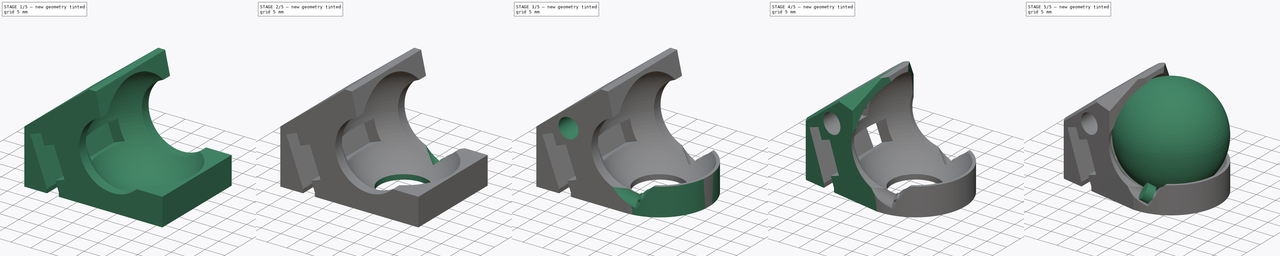
[diagram: build sequence overview — one tinted view per stage of 5, left to right]
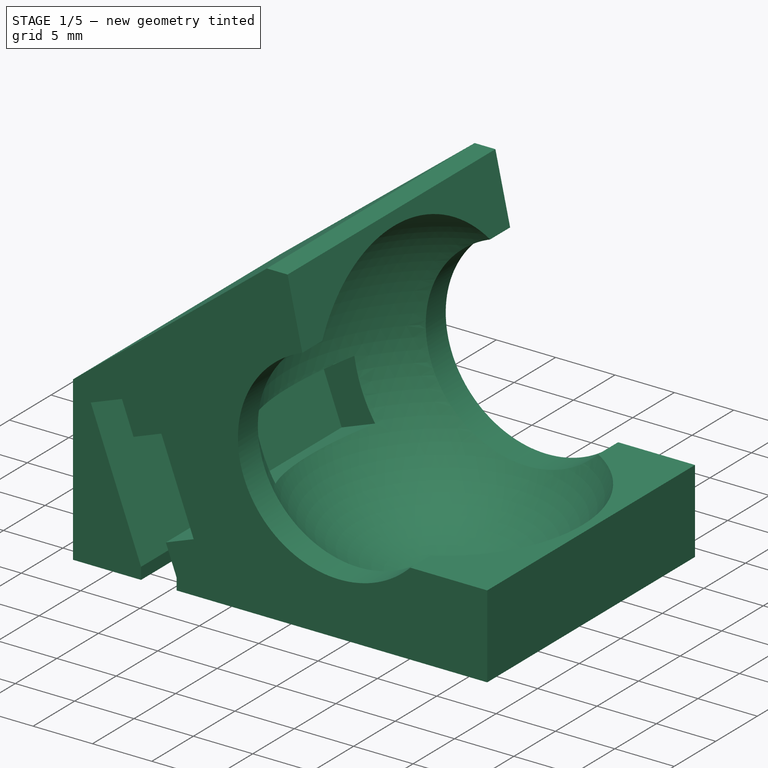
[diagram: stage 1 of 5 — iso view after this stage's code; geometry added in this stage tinted green]
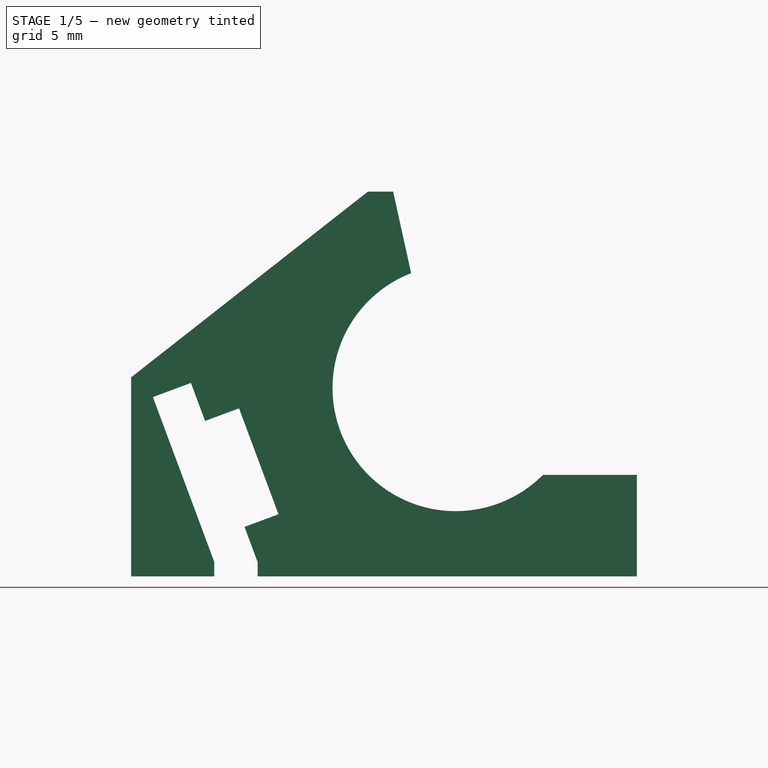
[diagram: stage 1 of 5 — front view after this stage's code; geometry added in this stage tinted green]
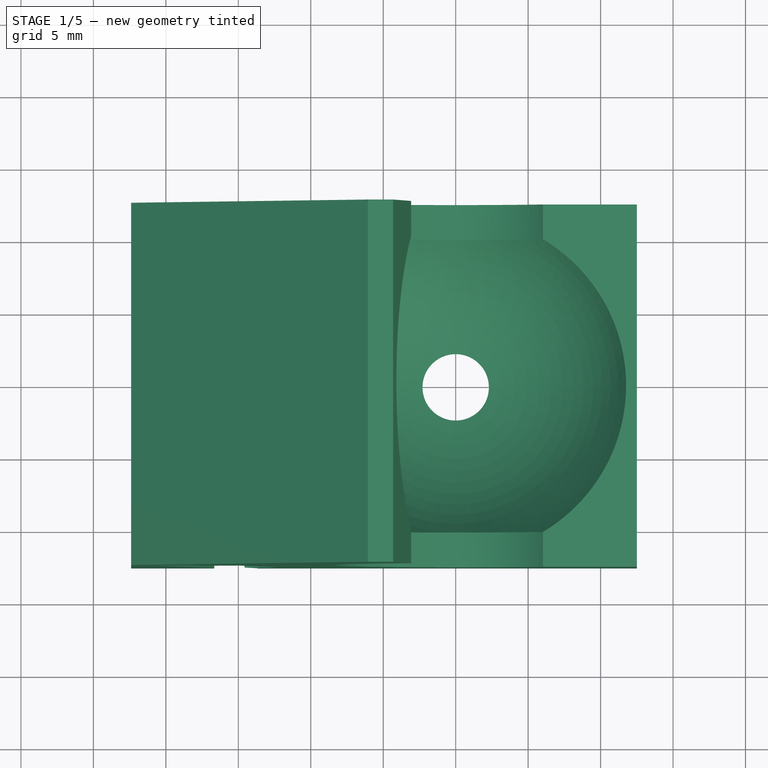
[diagram: stage 1 of 5 — top view after this stage's code; geometry added in this stage tinted green]
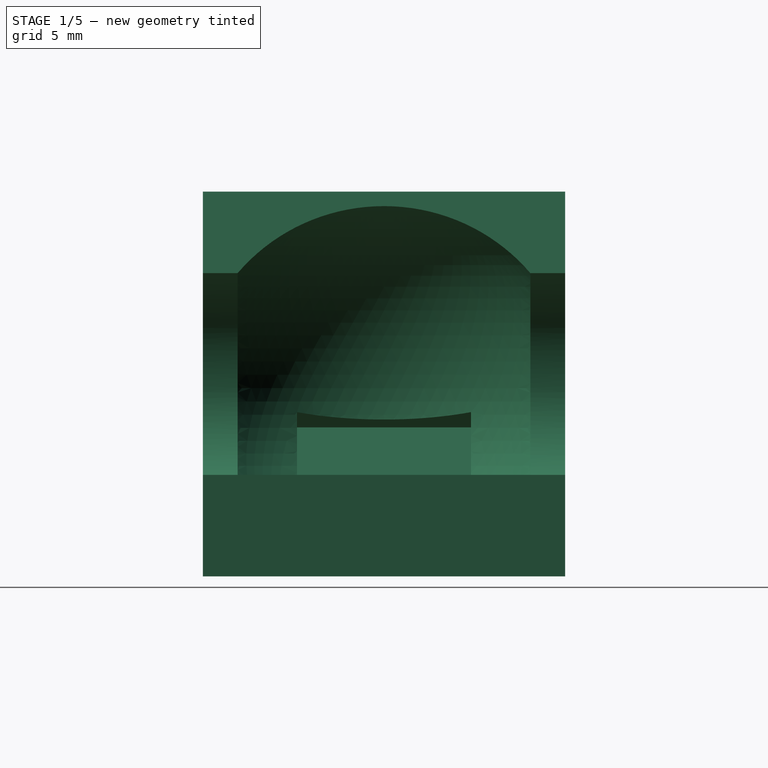
[diagram: stage 1 of 5 — right view after this stage's code; geometry added in this stage tinted green]
FCSTD DOCUMENT  (FreeCAD 0.21R33771 (Git))
Label: trackball-case
License: All rights reserved
LicenseURL: http://en.wikipedia.org/wiki/All_rights_reserved
objects: Sketcher::SketchObject×16, PartDesign::Pocket×11, PartDesign::Pad×3, PartDesign::Line×2, PartDesign::PolarPattern×2, PartDesign::Body×2, Spreadsheet::Sheet×1, PartDesign::AdditiveSphere×1, PartDesign::Point×1, PartDesign::Plane×1, PartDesign::SubtractiveSphere×1, PartDesign::Mirrored×1, PartDesign::Chamfer×1
note: 59 computed .brp shape members not serialized (recipe doc carries the construction recipe); baked Part::Feature solids carry a one-line shape summary decoded from their .brp

FEATURE [Sketcher::SketchObject] Sketch
  FullyConstrained = false
  MapMode = 5
  Placement = pos=(0,0,0) rot=(1,0,0;1.5708rad)
  Support = -> [XZ_Plane]
  expr: Constraints[18] = Spreadsheet.radius + 2
  expr: Constraints[1] = Spreadsheet.radius * 2
  expr: Constraints[2] = Spreadsheet.ball_z
  expr: Constraints[37] = 2 * (Spreadsheet.radius + Spreadsheet.clearance)
  expr: Constraints[42] = Spreadsheet.radius * 2 - 0.6
  expr: Constraints[89] = Spreadsheet.radius + Spreadsheet.clearance + 1.2
  sketch-geometry (32):
    g0: Circle CenterX=0 CenterY=13 CenterZ=0 NormalX=0 NormalY=0 NormalZ=1 AngleXU=0 Radius=12.5
    g1: LineSegment StartX=0 StartY=13 StartZ=0 EndX=-23.8845 EndY=4.10753 EndZ=0
    g2: LineSegment StartX=-15.9265 StartY=14.2197 StartZ=0 EndX=-20.8934 EndY=12.3704 EndZ=0
    g3: LineSegment StartX=-20.8934 StartY=12.3704 StartZ=0 EndX=-16.2877 EndY=0 EndZ=0
    g4: LineSegment StartX=-16.2877 StartY=0 StartZ=0 EndX=-11.3208 EndY=1.84924 EndZ=0
    g5: LineSegment StartX=-11.3208 StartY=1.84924 StartZ=0 EndX=-15.9265 EndY=14.2197 EndZ=0
    g6: LineSegment StartX=-11.3208 StartY=1.84924 StartZ=0 EndX=-13.5887 EndY=7.94075 EndZ=0
    g7: LineSegment StartX=12.5 StartY=13 StartZ=0 EndX=12.5 EndY=0 EndZ=0
    g8: LineSegment StartX=12.5 StartY=7 StartZ=0 EndX=0 EndY=7 EndZ=0
    g9: LineSegment StartX=0 StartY=7 StartZ=0 EndX=-4.09504 EndY=25.5487 EndZ=0
    g10: LineSegment StartX=-4.09504 StartY=25.5487 StartZ=0 EndX=-22.3934 EndY=25.5487 EndZ=0
    g11: LineSegment StartX=-22.3934 StartY=25.5487 StartZ=0 EndX=-22.3934 EndY=0 EndZ=0
    g12: LineSegment StartX=-22.3934 StartY=0 StartZ=0 EndX=12.5 EndY=0 EndZ=0
    g13: LineSegment StartX=12.5 StartY=0 StartZ=0 EndX=12.5 EndY=7 EndZ=0
    g14: Circle CenterX=0 CenterY=13 CenterZ=0 NormalX=0 NormalY=0 NormalZ=1 AngleXU=0 Radius=13.2
    g15: LineSegment StartX=0 StartY=7 StartZ=0 EndX=11.7576 EndY=7 EndZ=0
    g16: LineSegment StartX=-4.31581 StartY=26.5487 StartZ=0 EndX=-4.09504 EndY=25.5487 EndZ=0
    g17: LineSegment StartX=-18.2694 StartY=13.3474 StartZ=0 EndX=-20.8934 EndY=12.3704 EndZ=0
    g18: LineSegment StartX=-20.8934 StartY=12.3704 StartZ=0 EndX=-16.66 EndY=1 EndZ=0
    g19: LineSegment StartX=-16.66 StartY=1 StartZ=0 EndX=-16.66 EndY=0 EndZ=0
    g20: LineSegment StartX=-16.66 StartY=0 StartZ=0 EndX=-22.3934 EndY=0 EndZ=0
    g21: LineSegment StartX=-18.2694 StartY=13.3474 StartZ=0 EndX=-17.2924 EndY=10.7234 EndZ=0
    g22: LineSegment StartX=-17.2924 StartY=10.7234 StartZ=0 EndX=-14.9495 EndY=11.5957 EndZ=0
    g23: LineSegment StartX=-14.9495 StartY=11.5957 StartZ=0 EndX=-12.228 EndY=4.28585 EndZ=0
    g24: LineSegment StartX=-12.228 StartY=4.28585 StartZ=0 EndX=-14.5709 EndY=3.41356 EndZ=0
    g25: LineSegment StartX=-14.5709 StartY=3.41356 StartZ=0 EndX=-13.6637 EndY=0.976959 EndZ=0
    g26: LineSegment StartX=-13.6637 StartY=0.976959 StartZ=0 EndX=-13.6637 EndY=0 EndZ=0
    g27: LineSegment StartX=-13.6637 StartY=0 StartZ=0 EndX=12.5 EndY=0 EndZ=0
    g28: LineSegment StartX=-18.2694 StartY=13.3474 StartZ=0 EndX=-13.6637 EndY=0.976959 EndZ=0
    g29: LineSegment StartX=-22.3934 StartY=0 StartZ=0 EndX=-22.3934 EndY=13.7357 EndZ=0
    g30: LineSegment StartX=-22.3934 StartY=13.7357 StartZ=0 EndX=-6.05923 EndY=26.5487 EndZ=0
    g31: LineSegment StartX=-6.05923 StartY=26.5487 StartZ=0 EndX=-4.31581 EndY=26.5487 EndZ=0
  constraints (93):
    c: PointOnObject(g0,g-2)
    c: Diameter(g0) = 25
    c: Distance(g0,g-1) = 13
    c: Coincident(g1,g0)
    c: Coincident(g3,g2)
    c: Coincident(g4,g3)
    c: Coincident(g5,g4)
    c: Coincident(g5,g2)
    c: Perpendicular(g1,g5)
    c: Perpendicular(g1,g3)
    c: Parallel(g2,g1)
    c: Parallel(g4,g1)
    c: Distance(g3,g1) = 6.5
    c: Distance(g2,g1) = 6.7
    c: Distance(g4) = 5.3
    c: Coincident(g6,g4)
    c: PointOnObject(g6,g1)
    c: PointOnObject(g6,g5)
    c: Distance(g6,g0) = 14.5
    c: PointOnObject(g7,g0)
    c: PointOnObject(g7,g-1)
    c: Vertical(g7)
    c: Tangent(g7,g0)
    c: PointOnObject(g8,g7)
    c: PointOnObject(g8,g-2)
    c: Horizontal(g8)
    c: Coincident(g9,g8)
    c: Coincident(g10,g9)
    c: Horizontal(g10)
    c: Coincident(g11,g10)
    c: PointOnObject(g11,g-1)
    c: Vertical(g11)
    c: Coincident(g12,g11)
    c: Coincident(g12,g7)
    c: Coincident(g13,g12)
    c: Coincident(g13,g8)
    c: Coincident(g14,g0)
    c: Diameter(g14) = 26.4
    c: PointOnObject(g9,g14)
    c: Coincident(g15,g8)
    c: PointOnObject(g15,g8)
    c: PointOnObject(g15,g14)
    c: Distance(g9,g15) = 24.4
    c: Distance(g13) = 7
    c: Coincident(g16,g9)
    c: Parallel(g16,g9)
    c: Distance(g2,g11) = 1.5
    c: PointOnObject(g3,g12)
    c: PointOnObject(g17,g2)
    c: Coincident(g17,g2)
    c: Coincident(g18,g17)
    c: PointOnObject(g18,g3)
    c: Coincident(g19,g18)
    c: PointOnObject(g19,g12)
    c: Vertical(g19)
    c: Coincident(g20,g19)
    c: Coincident(g20,g11)
    c: Coincident(g21,g17)
    c: Coincident(g22,g21)
    c: PointOnObject(g22,g5)
    c: Coincident(g23,g22)
    c: PointOnObject(g23,g5)
    c: Coincident(g24,g23)
    c: Coincident(g25,g24)
    c: PointOnObject(g25,g4)
    c: Coincident(g26,g25)
    c: PointOnObject(g26,g12)
    c: Vertical(g26)
    c: Coincident(g27,g26)
    c: Coincident(g27,g13)
    c: Coincident(g28,g17)
    c: Coincident(g28,g25)
    c: PointOnObject(g21,g28)
    c: PointOnObject(g24,g28)
    c: Perpendicular(g22,g21)
    c: Perpendicular(g25,g24)
    c: Distance(g22,g1) = 3.9
    c: Distance(g23,g1) = 3.9
    c: Distance(g22) = 2.5
    c: Perpendicular(g1,g28)
    c: Distance(g19) = 1
    c: Coincident(g29,g20)
    c: PointOnObject(g29,g11)
    c: Coincident(g30,g29)
    c: Coincident(g31,g30)
    c: Coincident(g31,g16)
    c: Horizontal(g31)
    c: Distance(g16,g10) = 1
    c: Distance(g17,g30) = 2
    c: Distance(g0,g30) = 14.4
    c: Distance(g15,g8) = 0.742449
    c: Distance(g16,g27) = 26.5487
    c: Distance(g20,g-2) = 22.3934
FEATURE [Spreadsheet::Sheet] Spreadsheet
  cells = A1='radius; B1(radius)=12.5; A2='ball_z; B2(ball_z)=13; A3='ball_clearance; B3(clearance)=0.7; A4='bearing_radius; B4(bearing_radius)=2; A5='bearing_t; B5(bearing_t)=2; A6='bearing_a1; B6(bearing_a1)=100; A7='bearing_a2; B7(bearing_a2)=30
FEATURE [PartDesign::Pad] Pad
  Direction = (0,-1,2e-16)
  Length = 25
  Length2 = 10
  Midplane = true
  Placement = pos=(0,0,0) rot=(1,0,0;1.5708rad)
  Profile = -> Sketch
  ReferenceAxis = -> Sketch [N_Axis]
  Type = 0
  expr: Length = Spreadsheet.radius * 2
FEATURE [Sketcher::SketchObject] Sketch001
  FullyConstrained = true
  MapMode = 5
  Placement = pos=(0,0,0) rot=(1,0,0;1.5708rad)
  Support = -> [XZ_Plane]
  expr: Constraints[1] = Spreadsheet.ball_z
  sketch-geometry (1):
    g0: Circle CenterX=0 CenterY=13 CenterZ=0 NormalX=0 NormalY=0 NormalZ=1 AngleXU=0 Radius=8.5
  constraints (3):
    c: PointOnObject(g0,g-2)
    c: Distance(g0,g-1) = 13
    c: Diameter(g0) = 17
FEATURE [Sketcher::SketchObject] Sketch002
  FullyConstrained = true
  MapMode = 5
  Support = -> [XY_Plane]
  sketch-geometry (1):
    g0: Circle CenterX=0 CenterY=0 CenterZ=0 NormalX=0 NormalY=0 NormalZ=1 AngleXU=0 Radius=6
  constraints (2):
    c: Coincident(g0,g-1)
    c: Diameter(g0) = 12
FEATURE [Sketcher::SketchObject] Sketch006
  FullyConstrained = false
  MapMode = 5
  Placement = pos=(0,0,0) rot=(1,0,0;1.5708rad)
  Support = -> [XZ_Plane]
  expr: Constraints[1] = Spreadsheet.ball_z
  expr: Constraints[2] = Spreadsheet.bearing_a1
  expr: Constraints[3] = Spreadsheet.bearing_a2
  expr: Constraints[5] = (Spreadsheet.bearing_a1 + Spreadsheet.bearing_a2) / 2
  sketch-geometry (3):
    g0: LineSegment StartX=0 StartY=13 StartZ=0 EndX=-24.3601 EndY=17.2954 EndZ=0
    g1: LineSegment StartX=-0.855559 StartY=12.664 StartZ=0 EndX=7.91392 EndY=-2.52517 EndZ=0
    g2: LineSegment StartX=4.29224 StartY=19.13 StartZ=0 EndX=-7.83363 EndY=1.81242 EndZ=0
  constraints (6):
    c: PointOnObject(g0,g-2)
    c: Distance(g0,g-1) = 13
    c: Angle(g0,g-2) = 1.74533
    c: Angle(g-2,g1) = 0.523599
    c: PointOnObject(g0,g2)
    c: Angle(g0,g2) = 1.13446
FEATURE [PartDesign::Line] DatumLine
  AttacherType = Attacher::AttachEngineLine
  Length = 20
  MapMode = 29
  Placement = pos=(-6.108,9e-16,4.27687) rot=(0.690162,-0.690162,-0.217607;2.71306rad)
  ResizeMode = 0
  Support = -> [Sketch006]
FEATURE [PartDesign::Point] DatumPoint
  AttacherType = Attacher::AttachEnginePoint
  AttachmentOffset = pos=(0,0,13) rot=(0,0,1;0rad)
  MapMode = 41
  Placement = pos=(0,0,13) rot=(0,0,1;0rad)
  Support = -> [X_Axis,Y_Axis]
  expr: .AttachmentOffset.Base.z = Spreadsheet.ball_z
FEATURE [PartDesign::Plane] DatumPlane
  AttachmentOffset = pos=(0,0,0) rot=(0.654654,0.377964,-0.654654;2.41886rad)
  Length = 85.7869
  MapMode = 7
  Placement = pos=(2.7e-15,2.1e-15,13) rot=(0.133526,0.957276,-0.256501;2.21698rad)
  ResizeMode = 0
  Support = -> [DatumLine,DatumPoint]
  Width = 93.4714
FEATURE [Sketcher::SketchObject] Sketch003
  FullyConstrained = true
  MapMode = 5
  Placement = pos=(2.7e-15,1.8e-15,13) rot=(0.133526,0.957276,-0.256501;2.21698rad)
  Support = -> [DatumPlane]
  expr: Constraints[0] = Spreadsheet.bearing_radius * 2
  expr: Constraints[2] = Spreadsheet.radius + Spreadsheet.bearing_radius
  expr: Constraints[4] = (Spreadsheet.bearing_radius + 0.5) * 2
  expr: Constraints[6] = (Spreadsheet.bearing_a1 + Spreadsheet.bearing_a2) / 2
  sketch-geometry (3):
    g0: Circle CenterX=6.12796 CenterY=13.1415 CenterZ=0 NormalX=0 NormalY=0 NormalZ=1 AngleXU=0 Radius=2
    g1: LineSegment StartX=0 StartY=0 StartZ=0 EndX=6.12796 EndY=13.1415 EndZ=0
    g2: Circle CenterX=6.12796 CenterY=13.1415 CenterZ=0 NormalX=0 NormalY=0 NormalZ=1 AngleXU=0 Radius=2.5
  constraints (7):
    c: Diameter(g0) = 4
    c: Coincident(g1,g0)
    c: Distance(g1) = 14.5
    c: Coincident(g2,g0)
    c: Diameter(g2) = 5
    c: Coincident(g1,g-1)
    c: Angle(g-1,g1) = 1.13446
FEATURE [Sketcher::SketchObject] Sketch004
  AttachmentOffset = pos=(0,0,1) rot=(0,0,1;0rad)
  FullyConstrained = true
  MapMode = 5
  Placement = pos=(0.709406,-0.5,12.5033) rot=(0.133526,0.957276,-0.256501;2.21698rad)
  Support = -> [DatumPlane]
  expr: .AttachmentOffset.Base.z = Spreadsheet.bearing_t / 2
  expr: Constraints[0] = Spreadsheet.bearing_radius * 2
  expr: Constraints[2] = Spreadsheet.radius + Spreadsheet.bearing_radius
  expr: Constraints[6] = (Spreadsheet.bearing_a1 + Spreadsheet.bearing_a2) / 2
  sketch-geometry (3):
    g0: Circle CenterX=6.12796 CenterY=13.1415 CenterZ=0 NormalX=0 NormalY=0 NormalZ=1 AngleXU=0 Radius=2
    g1: LineSegment StartX=0 StartY=0 StartZ=0 EndX=6.12796 EndY=13.1415 EndZ=0
    g2: Circle CenterX=6.12796 CenterY=13.1415 CenterZ=0 NormalX=0 NormalY=0 NormalZ=1 AngleXU=0 Radius=0.95
  constraints (7):
    c: Diameter(g0) = 4
    c: Coincident(g1,g0)
    c: Distance(g1) = 14.5
    c: Coincident(g2,g0)
    c: Diameter(g2) = 1.9
    c: Coincident(g1,g-1)
    c: Angle(g-1,g1) = 1.13446
FEATURE [Sketcher::SketchObject] Sketch005
  AttachmentOffset = pos=(0,0,1) rot=(0,0,1;0rad)
  FullyConstrained = true
  MapMode = 5
  Placement = pos=(0.709406,-0.5,12.5033) rot=(0.133526,0.957276,-0.256501;2.21698rad)
  Support = -> [DatumPlane]
  expr: .AttachmentOffset.Base.z = Spreadsheet.bearing_t / 2
  expr: Constraints[0] = Spreadsheet.bearing_radius * 2
  expr: Constraints[29] = (Spreadsheet.bearing_a1 + Spreadsheet.bearing_a2) / 2
  expr: Constraints[2] = Spreadsheet.radius + Spreadsheet.bearing_radius
  sketch-geometry (11):
    g0: Circle CenterX=6.12796 CenterY=13.1415 CenterZ=0 NormalX=0 NormalY=0 NormalZ=1 AngleXU=0 Radius=2
    g1: LineSegment StartX=0 StartY=0 StartZ=0 EndX=6.12796 EndY=13.1415 EndZ=0
    g2: LineSegment StartX=6.12796 StartY=13.1415 StartZ=0 EndX=6.12796 EndY=15.1415 EndZ=0
    g3: Circle CenterX=6.12796 CenterY=13.1415 CenterZ=0 NormalX=0 NormalY=0 NormalZ=1 AngleXU=0 Radius=0.65
    g4: LineSegment StartX=6.12796 StartY=13.7915 StartZ=0 EndX=5.56505 EndY=13.4665 EndZ=0
    g5: LineSegment StartX=5.56505 StartY=13.4665 StartZ=0 EndX=5.56505 EndY=12.8165 EndZ=0
    g6: LineSegment StartX=5.56505 StartY=12.8165 StartZ=0 EndX=6.12796 EndY=12.4915 EndZ=0
    g7: LineSegment StartX=6.12796 StartY=12.4915 StartZ=0 EndX=6.69088 EndY=12.8165 EndZ=0
    g8: LineSegment StartX=6.69088 StartY=12.8165 StartZ=0 EndX=6.69088 EndY=13.4665 EndZ=0
    g9: LineSegment StartX=6.69088 StartY=13.4665 StartZ=0 EndX=6.12796 EndY=13.7915 EndZ=0
    g10: Circle CenterX=6.12796 CenterY=13.1415 CenterZ=0 NormalX=0 NormalY=0 NormalZ=1 AngleXU=0 Radius=0.65
  constraints (26):
    c: Diameter(g0) = 4
    c: Coincident(g1,g0)
    c: Distance(g1) = 14.5
    c: Coincident(g2,g0)
    c: PointOnObject(g2,g0)
    c: Vertical(g2)
    c: Coincident(g3,g0)
    c: Diameter(g3) = 1.3
    c: Coincident(g4,g5)
    c: Coincident(g5,g6)
    c: Coincident(g6,g7)
    c: Coincident(g7,g8)
    c: Coincident(g8,g9)
    c: Coincident(g9,g4)
    c: Equal(g4, g5-g9) x5
    c: PointOnObject(g4,g10)
    c: PointOnObject(g5,g10)
    c: PointOnObject(g6,g10)
    c: PointOnObject(g7,g10)
    c: PointOnObject(g8,g10)
    c: PointOnObject(g9,g10)
    c: Coincident(g10,g0)
    c: PointOnObject(g9,g3)
    c: PointOnObject(g4,g2)
    c: Coincident(g1,g-1)
    c: Angle(g-1,g1) = 1.13446
FEATURE [Sketcher::SketchObject] Sketch007
  FullyConstrained = true
  MapMode = 5
  Support = -> [XY_Plane]
  expr: Constraints[6] = Spreadsheet.radius
  expr: Constraints[7] = Spreadsheet.radius * 2
  sketch-geometry (4):
    g0: ArcOfCircle CenterX=0 CenterY=0 CenterZ=0 NormalX=0 NormalY=0 NormalZ=1 AngleXU=0 Radius=12.5 StartAngle=4.71239 EndAngle=7.85398
    g1: ArcOfCircle CenterX=0 CenterY=0 CenterZ=0 NormalX=0 NormalY=0 NormalZ=1 AngleXU=0 Radius=25 StartAngle=4.71239 EndAngle=7.85398
    g2: LineSegment StartX=1.3621e-12 StartY=25 StartZ=0 EndX=0 EndY=12.5 EndZ=0
    g3: LineSegment StartX=0 StartY=-12.5 StartZ=0 EndX=-9.15e-13 EndY=-25 EndZ=0
  constraints (12):
    c: Coincident(g0,g-1)
    c: PointOnObject(g0,g-2)
    c: PointOnObject(g0,g-2)
    c: Coincident(g1,g0)
    c: PointOnObject(g1,g-2)
    c: PointOnObject(g1,g-2)
    c: Radius(g0) = 12.5
    c: Radius(g1) = 25
    c: Coincident(g2,g1)
    c: Coincident(g2,g0)
    c: Coincident(g3,g0)
    c: Coincident(g3,g1)
FEATURE [Sketcher::SketchObject] Sketch008
  FullyConstrained = true
  MapMode = 5
  Support = -> [XY_Plane]
  expr: Constraints[10] = Spreadsheet.radius * 2
  expr: Constraints[33] = Spreadsheet.radius * 2
  expr: Constraints[34] = Spreadsheet.radius * 2
  expr: Constraints[36] = Spreadsheet.radius * 2
  sketch-geometry (14):
    g0: LineSegment StartX=-23 StartY=-12.5 StartZ=0 EndX=-23 EndY=12.5 EndZ=0
    g1: LineSegment StartX=-23 StartY=12.5 StartZ=0 EndX=0 EndY=12.5 EndZ=0
    g2: LineSegment StartX=0 StartY=12.5 StartZ=0 EndX=0 EndY=-12.5 EndZ=0
    g3: LineSegment StartX=0 StartY=-12.5 StartZ=0 EndX=-23 EndY=-12.5 EndZ=0
    g4: GeomPoint X=-11.5 Y=0 Z=0
    g5: LineSegment StartX=-23 StartY=8 StartZ=0 EndX=-1 EndY=12.5 EndZ=0
    g6: LineSegment StartX=-1 StartY=12.5 StartZ=0 EndX=-1 EndY=-12.5 EndZ=0
    g7: LineSegment StartX=-1 StartY=-12.5 StartZ=0 EndX=-23 EndY=-8 EndZ=0
    g8: LineSegment StartX=-1 StartY=-12.5 StartZ=0 EndX=-1 EndY=-25 EndZ=0
    g9: LineSegment StartX=-1 StartY=-25 StartZ=0 EndX=-26 EndY=-25 EndZ=0
    g10: LineSegment StartX=-26 StartY=-25 StartZ=0 EndX=-26 EndY=25 EndZ=0
    g11: LineSegment StartX=-26 StartY=25 StartZ=0 EndX=-1 EndY=25 EndZ=0
    g12: LineSegment StartX=-1 StartY=25 StartZ=0 EndX=-1 EndY=12.5 EndZ=0
    g13: LineSegment StartX=-23 StartY=8 StartZ=0 EndX=-23 EndY=-8 EndZ=0
  constraints (39):
    c: Coincident(g0,g1)
    c: Coincident(g1,g2)
    c: Coincident(g2,g3)
    c: Coincident(g3,g0)
    c: Horizontal(g1)
    c: Horizontal(g3)
    c: Vertical(g0)
    c: Vertical(g2)
    c: Symmetric(g1,g0,g4)
    c: PointOnObject(g4,g-1)
    c: Distance(g0) = 25
    c: PointOnObject(g1,g-2)
    c: Distance(g-1,g0) = 23
    c: PointOnObject(g5,g0)
    c: PointOnObject(g5,g1)
    c: Coincident(g6,g5)
    c: PointOnObject(g6,g3)
    c: Vertical(g6)
    c: Coincident(g7,g6)
    c: PointOnObject(g7,g0)
    c: Distance(g5,g-1) = 8
    c: Distance(g7,g-1) = 8
    c: Coincident(g8,g7)
    c: Vertical(g8)
    c: Coincident(g9,g8)
    c: Horizontal(g9)
    c: Coincident(g10,g9)
    c: Vertical(g10)
    c: Coincident(g11,g10)
    c: Horizontal(g11)
    c: Coincident(g12,g11)
    c: Coincident(g12,g5)
    c: Vertical(g12)
    c: Distance(g10,g-1) = 25
    c: Distance(g9,g-1) = 25
    c: Distance(g7,g-2) = 1
    c: Distance(g9) = 25
    c: Coincident(g13,g5)
    c: Coincident(g13,g7)
FEATURE [Sketcher::SketchObject] Sketch009
  FullyConstrained = false
  MapMode = 5
  Placement = pos=(0,0,0) rot=(1,0,0;1.5708rad)
  Support = -> [XZ_Plane]
  expr: Constraints[18] = Spreadsheet.radius + 2
  expr: Constraints[1] = Spreadsheet.radius * 2
  expr: Constraints[24] = 2 * (Spreadsheet.radius + Spreadsheet.clearance)
  expr: Constraints[2] = Spreadsheet.ball_z
  expr: Constraints[37] = Spreadsheet.radius + 3
  sketch-geometry (14):
    g0: Circle CenterX=0 CenterY=13 CenterZ=0 NormalX=0 NormalY=0 NormalZ=1 AngleXU=0 Radius=12.5
    g1: LineSegment StartX=0 StartY=13 StartZ=0 EndX=-23.8969 EndY=4.10289 EndZ=0
    g2: LineSegment StartX=-15.9265 StartY=14.2197 StartZ=0 EndX=-20.8934 EndY=12.3704 EndZ=0
    g3: LineSegment StartX=-20.8934 StartY=12.3704 StartZ=0 EndX=-16.2877 EndY=0 EndZ=0
    g4: LineSegment StartX=-16.2877 StartY=0 StartZ=0 EndX=-11.3208 EndY=1.84924 EndZ=0
    g5: LineSegment StartX=-11.3208 StartY=1.84924 StartZ=0 EndX=-15.9265 EndY=14.2197 EndZ=0
    g6: LineSegment StartX=-11.3208 StartY=1.84924 StartZ=0 EndX=-13.5887 EndY=7.94075 EndZ=0
    g7: LineSegment StartX=-4.89099 StartY=25.2604 StartZ=0 EndX=-22.0934 EndY=25.2604 EndZ=0
    g8: LineSegment StartX=-22.0934 StartY=25.2604 StartZ=0 EndX=-22.0934 EndY=0 EndZ=0
    g9: Circle CenterX=0 CenterY=13 CenterZ=0 NormalX=0 NormalY=0 NormalZ=1 AngleXU=0 Radius=13.2
    g10: LineSegment StartX=-15.3982 StartY=9.93472 StartZ=0 EndX=-13.6536 EndY=5.24895 EndZ=0
    g11: LineSegment StartX=-13.6536 StartY=5.24895 StartZ=0 EndX=0.872285 EndY=10.6571 EndZ=0
    g12: LineSegment StartX=-15.3982 StartY=9.93472 StartZ=0 EndX=-0.872285 EndY=15.3429 EndZ=0
    g13: LineSegment StartX=-0.872285 StartY=15.3429 StartZ=0 EndX=0.872285 EndY=10.6571 EndZ=0
  constraints (40):
    c: PointOnObject(g0,g-2)
    c: Diameter(g0) = 25
    c: Distance(g0,g-1) = 13
    c: Coincident(g1,g0)
    c: Coincident(g3,g2)
    c: Coincident(g4,g3)
    c: Coincident(g5,g4)
    c: Coincident(g5,g2)
    c: Perpendicular(g1,g5)
    c: Perpendicular(g1,g3)
    c: Parallel(g2,g1)
    c: Parallel(g4,g1)
    c: Distance(g3,g1) = 6.5
    c: Distance(g2,g1) = 6.7
    c: Distance(g4) = 5.3
    c: Coincident(g6,g4)
    c: PointOnObject(g6,g1)
    c: PointOnObject(g6,g5)
    c: Distance(g6,g0) = 14.5
    c: Horizontal(g7)
    c: Coincident(g8,g7)
    c: PointOnObject(g8,g-1)
    c: Vertical(g8)
    c: Coincident(g9,g0)
    c: Diameter(g9) = 26.4
    c: PointOnObject(g7,g9)
    c: Distance(g2,g8) = 1.2
    c: PointOnObject(g3,g-1)
    c: Coincident(g11,g10)
    c: Coincident(g12,g10)
    c: Coincident(g13,g12)
    c: Coincident(g13,g11)
    c: Perpendicular(g1,g10)
    c: Perpendicular(g1,g13)
    c: Perpendicular(g13,g11)
    c: Perpendicular(g13,g12)
    c: PointOnObject(g0,g13)
    c: Distance(g0,g10) = 15.5
    c: Distance(g10,g1) = 2.5
    c: Distance(g10,g1) = 2.5
FEATURE [PartDesign::Pocket] Pocket006  label="センサービューポート"
  BaseFeature = -> Pad
  Direction = (0,1,-2e-16)
  Length = 12
  Length2 = 5
  Midplane = true
  Placement = pos=(0,0,0) rot=(1,0,0;1.5708rad)
  Profile = -> Sketch009
  ReferenceAxis = -> Sketch009 [N_Axis]
  Type = 0
FEATURE [PartDesign::SubtractiveSphere] Sphere
  Angle1 = -90
  Angle2 = 90
  Angle3 = 360
  AttacherType = Attacher::AttachEngine3D
  AttachmentOffset = pos=(0,0,13) rot=(0,0,1;0rad)
  BaseFeature = -> Pocket006
  MapMode = 5
  Placement = pos=(0,0,13) rot=(0,0,1;0rad)
  Radius = 13.2
  Support = -> [XY_Plane]
  expr: .AttachmentOffset.Base.z = Spreadsheet.ball_z
  expr: Radius = Spreadsheet.radius + Spreadsheet.clearance
FEATURE [PartDesign::Pocket] Pocket  label="側面穴"
  BaseFeature = -> Sphere
  Direction = (0,1,-2e-16)
  Length = 100
  Length2 = 5
  Midplane = true
  Placement = pos=(0,0,13) rot=(0,0,1;0rad)
  Profile = -> Sketch001
  ReferenceAxis = -> Sketch001 [N_Axis]
  Type = 0
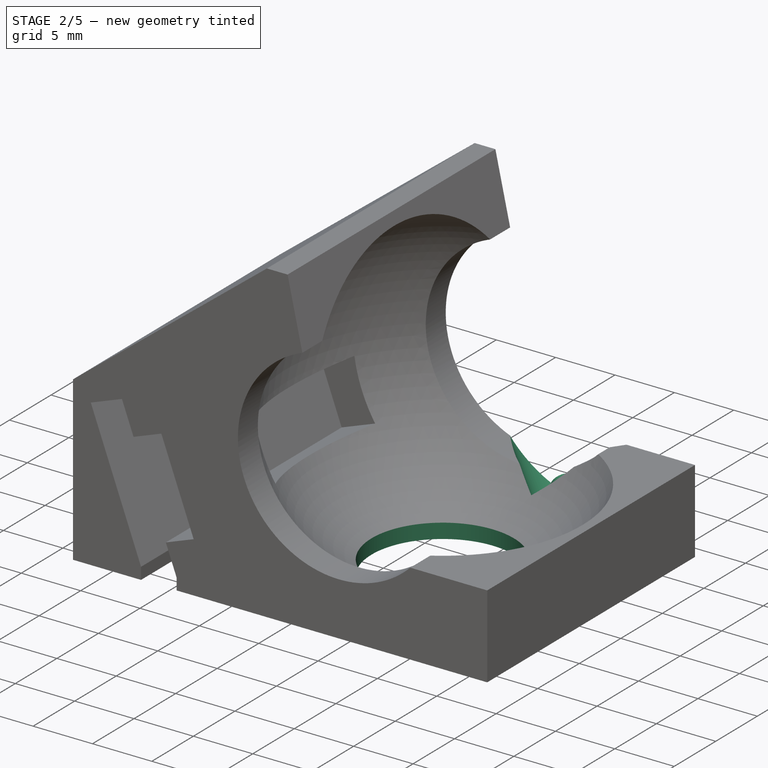
[diagram: stage 2 of 5 — iso view after this stage's code; geometry added in this stage tinted green]
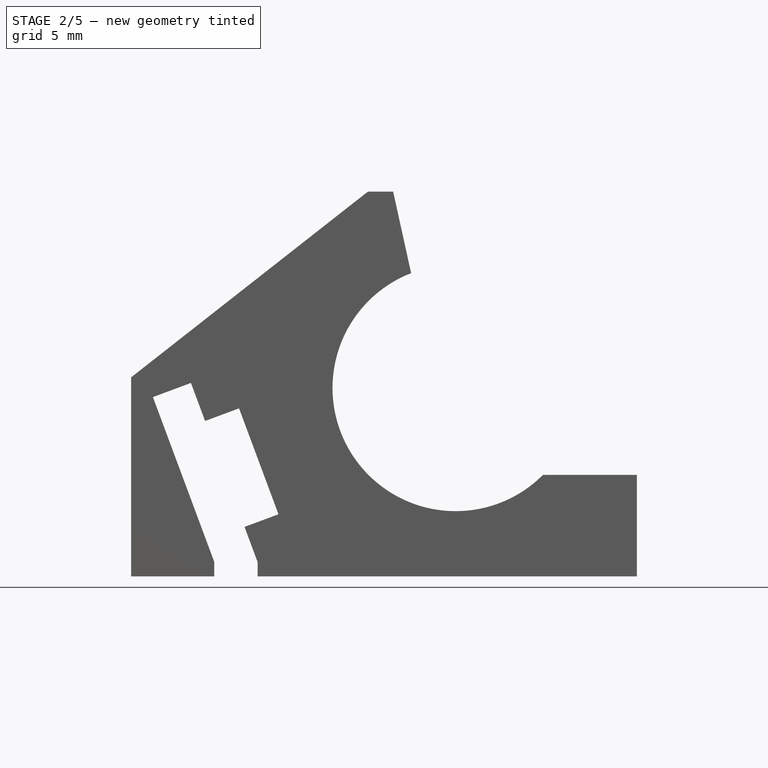
[diagram: stage 2 of 5 — front view after this stage's code; geometry added in this stage tinted green]
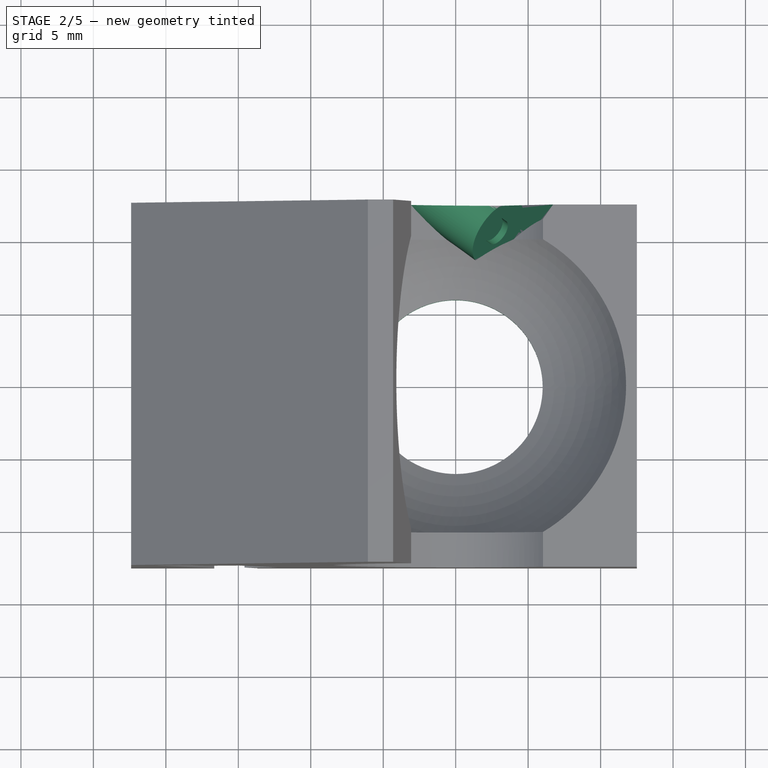
[diagram: stage 2 of 5 — top view after this stage's code; geometry added in this stage tinted green]
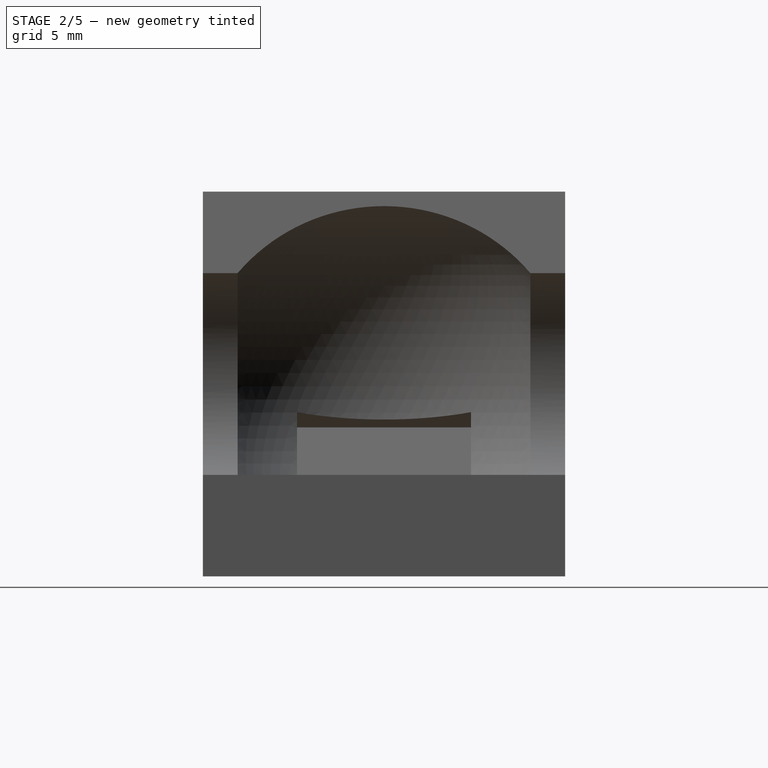
[diagram: stage 2 of 5 — right view after this stage's code; geometry added in this stage tinted green]
FEATURE [PartDesign::Pocket] Pocket001  label="底面穴"
  BaseFeature = -> Pocket
  Direction = (0,0,-1)
  Length = 12.5
  Length2 = 5
  Placement = pos=(0,0,13) rot=(0,0,1;0rad)
  Profile = -> Sketch002
  ReferenceAxis = -> Sketch002 [N_Axis]
  Reversed = true
  Type = 0
  expr: Length = Spreadsheet.radius
FEATURE [Sketcher::SketchObject] Sketch010
  FullyConstrained = true
  MapMode = 5
  Placement = pos=(2.7e-15,1.8e-15,13) rot=(0.133526,0.957276,-0.256501;2.21698rad)
  Support = -> [DatumPlane]
  expr: Constraints[0] = Spreadsheet.bearing_radius * 2
  expr: Constraints[2] = Spreadsheet.radius + Spreadsheet.bearing_radius
  expr: Constraints[4] = (Spreadsheet.bearing_radius + 0.5) * 2
  expr: Constraints[6] = (Spreadsheet.bearing_a1 + Spreadsheet.bearing_a2) / 2
  sketch-geometry (7):
    g0: Circle CenterX=6.12796 CenterY=13.1415 CenterZ=0 NormalX=0 NormalY=0 NormalZ=1 AngleXU=0 Radius=2
    g1: LineSegment StartX=0 StartY=0 StartZ=0 EndX=6.12796 EndY=13.1415 EndZ=0
    g2: Circle CenterX=6.12796 CenterY=13.1415 CenterZ=0 NormalX=0 NormalY=0 NormalZ=1 AngleXU=0 Radius=2.5
    g3: LineSegment StartX=7.18451 StartY=15.4072 StartZ=0 EndX=5.07142 EndY=10.8757 EndZ=0
    g4: LineSegment StartX=5.07142 StartY=10.8757 StartZ=0 EndX=-3.99166 EndY=15.1019 EndZ=0
    g5: LineSegment StartX=7.18451 StartY=15.4072 StartZ=0 EndX=-1.87858 EndY=19.6334 EndZ=0
    g6: LineSegment StartX=-1.87858 StartY=19.6334 StartZ=0 EndX=-3.99166 EndY=15.1019 EndZ=0
  constraints (19):
    c: Diameter(g0) = 4
    c: Coincident(g1,g0)
    c: Distance(g1) = 14.5
    c: Coincident(g2,g0)
    c: Diameter(g2) = 5
    c: Coincident(g1,g-1)
    c: Angle(g-1,g1) = 1.13446
    c: PointOnObject(g3,g2)
    c: PointOnObject(g3,g2)
    c: PointOnObject(g0,g3)
    c: PointOnObject(g3,g1)
    c: Coincident(g4,g3)
    c: Tangent(g4,g2)
    c: Coincident(g5,g3)
    c: Tangent(g5,g2)
    c: Coincident(g6,g5)
    c: Coincident(g6,g4)
    c: Parallel(g6,g3)
    c: Distance(g5) = 10
FEATURE [PartDesign::Pocket] Pocket007  label="ベアリング切り欠き1"
  BaseFeature = -> Pocket001
  Direction = (-0.709406,0.5,0.496732)
  Length = 5
  Length2 = 1.5
  Placement = pos=(0,0,13) rot=(0,0,1;0rad)
  Profile = -> Sketch010
  ReferenceAxis = -> Sketch010 [N_Axis]
  Type = 4
  expr: Length2 = Spreadsheet.bearing_t / 2 + 0.5
FEATURE [PartDesign::Pocket] Pocket002  label="ベアリング切り欠き2"
  BaseFeature = -> Pocket007
  Direction = (-0.709406,0.5,0.496732)
  Length = 1.5
  Length2 = 12.5
  Placement = pos=(0,0,13) rot=(0,0,1;0rad)
  Profile = -> Sketch003
  ReferenceAxis = -> Sketch003 [N_Axis]
  Reversed = true
  Type = 4
  expr: Length = Spreadsheet.bearing_t / 2 + 0.5
  expr: Length2 = Spreadsheet.radius
FEATURE [PartDesign::Pad] Pad001  label="ベアリングネジ固定台座"
  BaseFeature = -> Pocket002
  Direction = (0.709406,-0.5,-0.496732)
  Length = 2
  Length2 = 10
  Placement = pos=(0,0,13) rot=(0,0,1;0rad)
  Profile = -> Sketch004
  ReferenceAxis = -> Sketch004 [N_Axis]
  Type = 0
  expr: Length = Spreadsheet.bearing_t
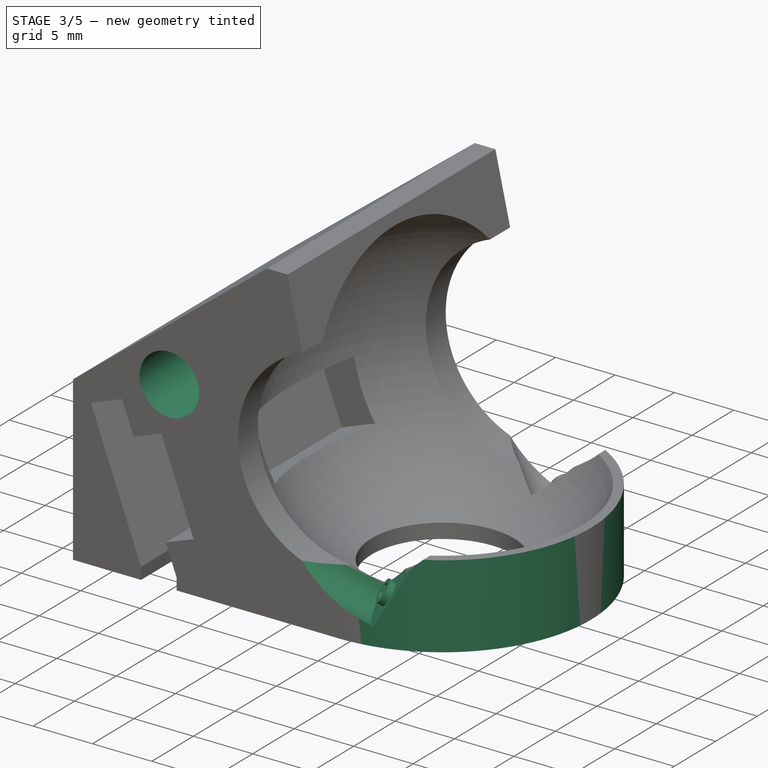
[diagram: stage 3 of 5 — iso view after this stage's code; geometry added in this stage tinted green]
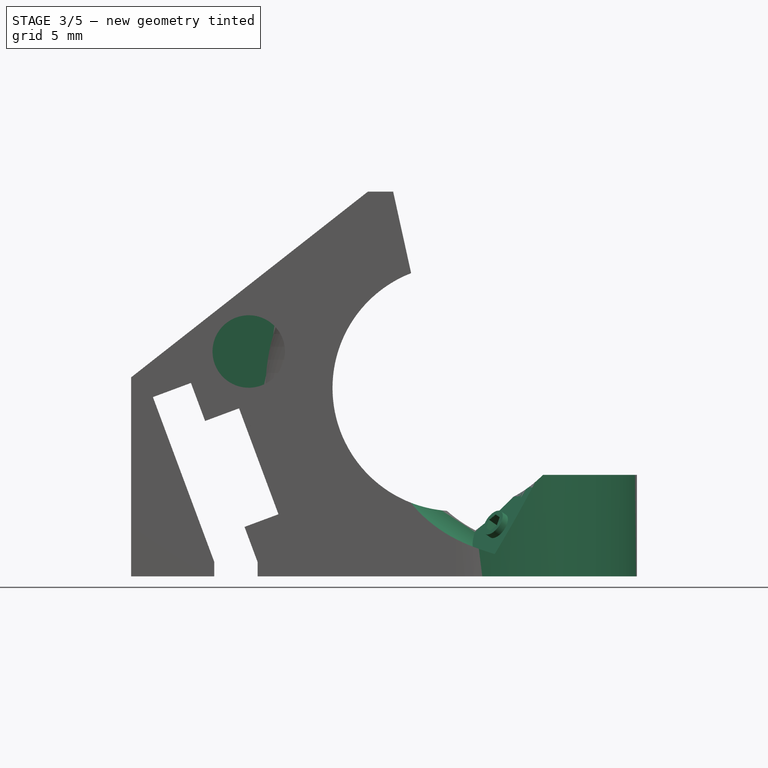
[diagram: stage 3 of 5 — front view after this stage's code; geometry added in this stage tinted green]
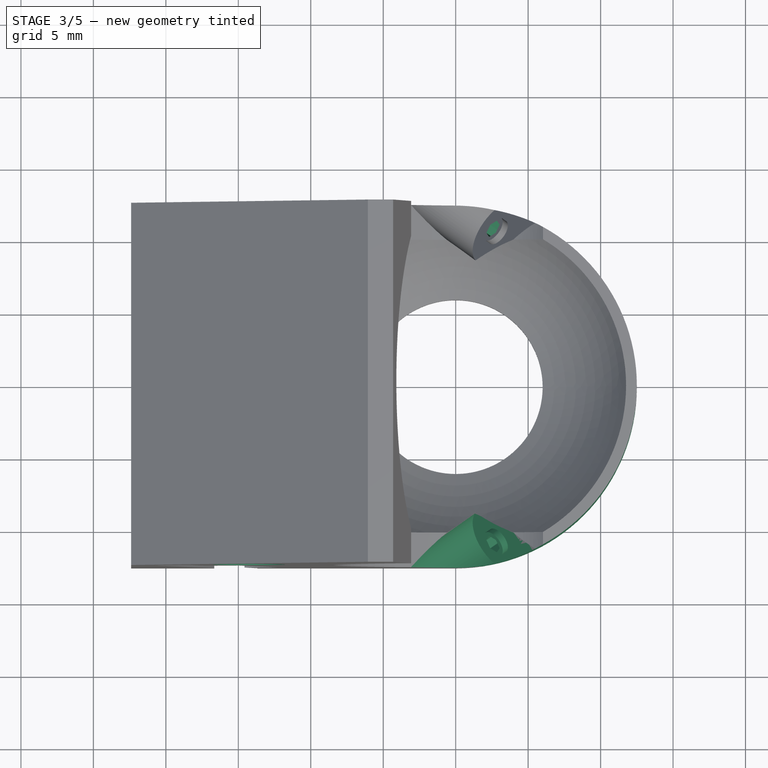
[diagram: stage 3 of 5 — top view after this stage's code; geometry added in this stage tinted green]
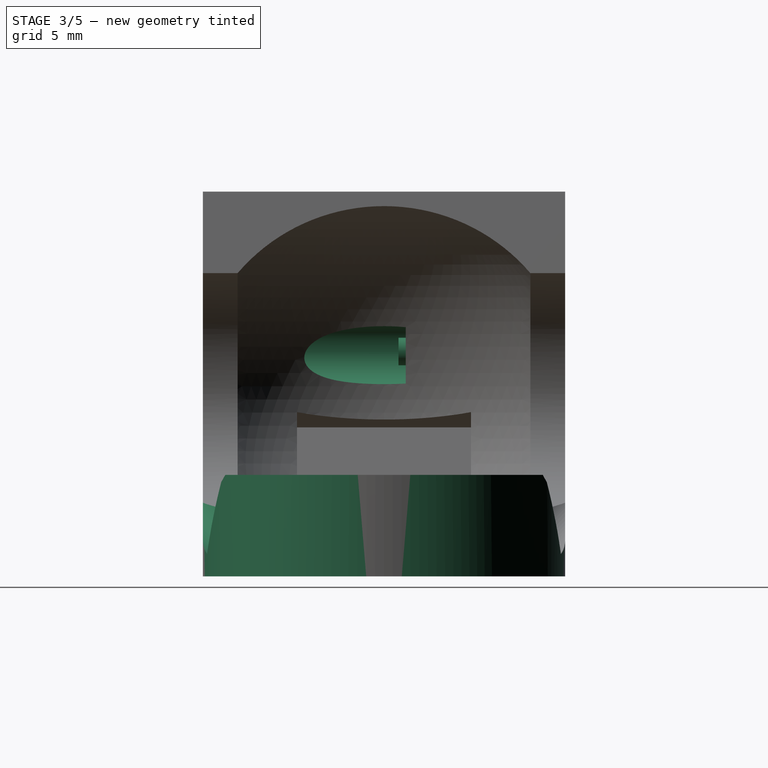
[diagram: stage 3 of 5 — right view after this stage's code; geometry added in this stage tinted green]
FEATURE [PartDesign::Pocket] Pocket003  label="ベアリング固定ネジ穴"
  BaseFeature = -> Pad001
  Direction = (-0.709406,0.5,0.496732)
  Length = 5
  Length2 = 5
  Placement = pos=(0,0,13) rot=(0,0,1;0rad)
  Profile = -> Sketch005
  ReferenceAxis = -> Sketch005 [N_Axis]
  Reversed = true
  Type = 0
FEATURE [PartDesign::PolarPattern] PolarPattern
  Angle = 120
  Axis = -> DatumLine
  BaseFeature = -> Pocket003
  Occurrences = 2
  Originals = -> [Pocket002,Pad001,Pocket003]
  Placement = pos=(0,0,13) rot=(0,0,1;0rad)
  Reversed = true
FEATURE [PartDesign::Mirrored] Mirrored
  BaseFeature = -> PolarPattern
  MirrorPlane = -> XZ_Plane
  Originals = -> [Pocket007,Pocket002,Pad001,Pocket003]
  Placement = pos=(0,0,13) rot=(0,0,1;0rad)
FEATURE [PartDesign::Pocket] Pocket004  label="外形カット1"
  BaseFeature = -> Mirrored
  Direction = (0,0,-1)
  Length = 12.5
  Length2 = 5
  Placement = pos=(0,0,13) rot=(0,0,1;0rad)
  Profile = -> Sketch007
  ReferenceAxis = -> Sketch007 [N_Axis]
  Reversed = true
  Type = 0
  expr: Length = Spreadsheet.radius
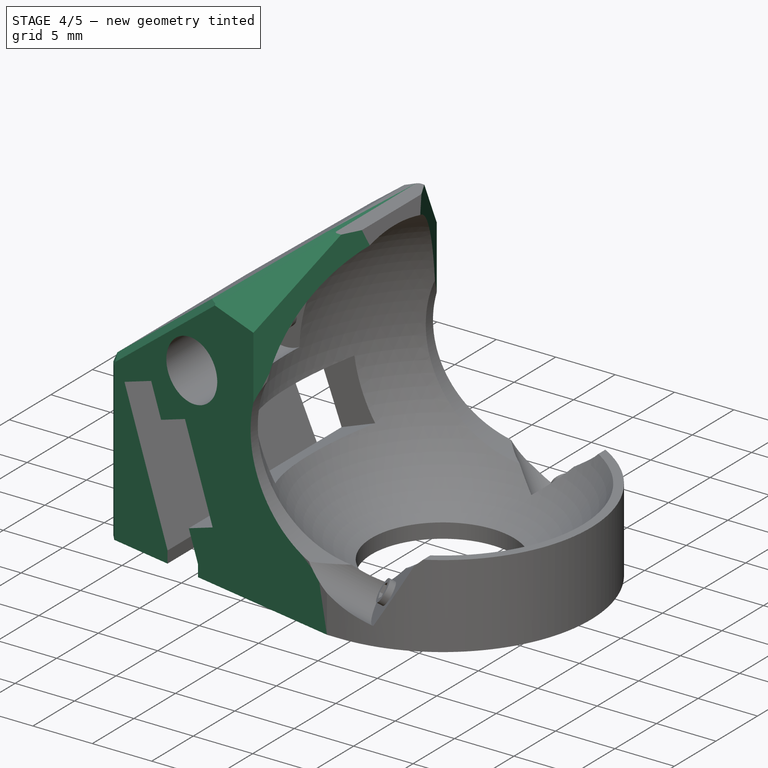
[diagram: stage 4 of 5 — iso view after this stage's code; geometry added in this stage tinted green]
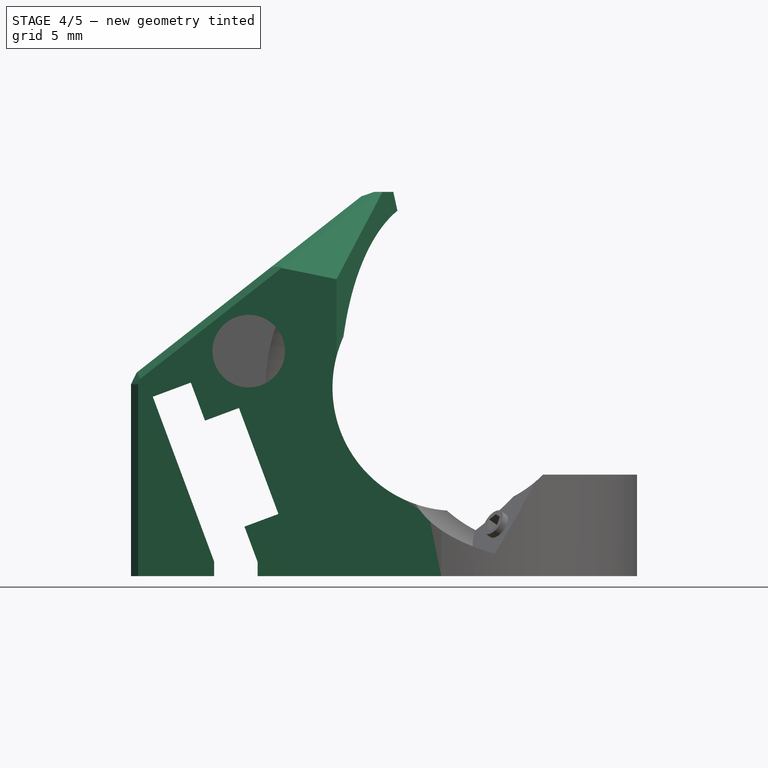
[diagram: stage 4 of 5 — front view after this stage's code; geometry added in this stage tinted green]
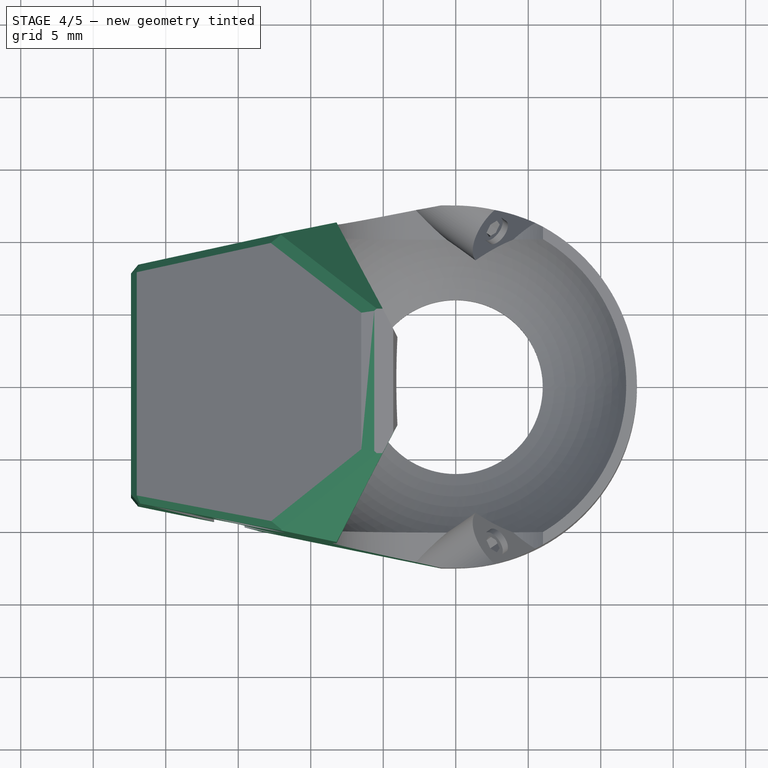
[diagram: stage 4 of 5 — top view after this stage's code; geometry added in this stage tinted green]
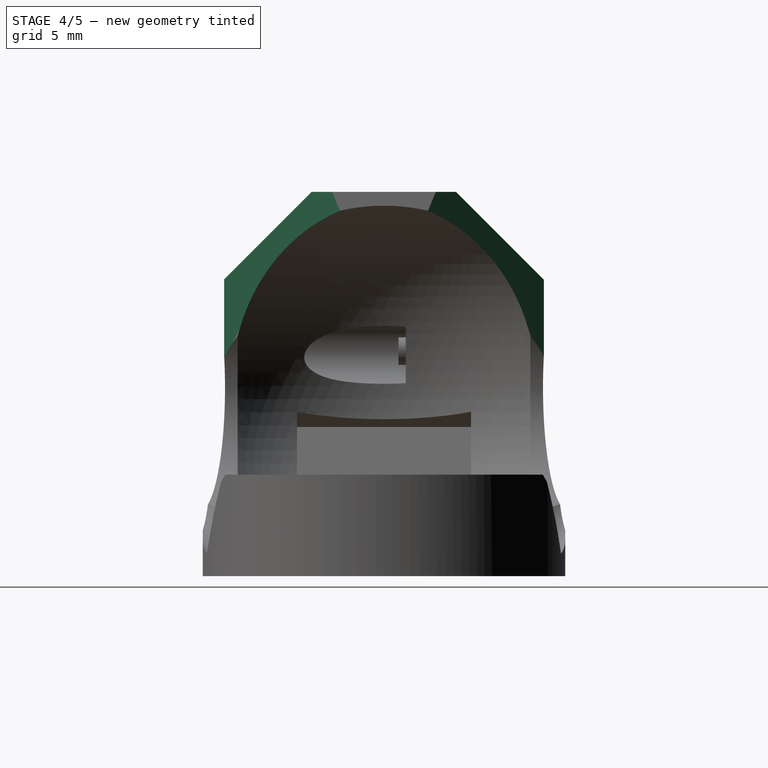
[diagram: stage 4 of 5 — right view after this stage's code; geometry added in this stage tinted green]
FEATURE [PartDesign::Pocket] Pocket005  label="外形カット2"
  BaseFeature = -> Pocket004
  Direction = (0,0,-1)
  Length = 37.5
  Length2 = 5
  Placement = pos=(0,0,13) rot=(0,0,1;0rad)
  Profile = -> Sketch008
  ReferenceAxis = -> Sketch008 [N_Axis]
  Reversed = true
  Type = 0
  expr: Length = Spreadsheet.radius * 3
FEATURE [Sketcher::SketchObject] Sketch011
  AttachmentOffset = pos=(0,0,13) rot=(0,0,1;0rad)
  FullyConstrained = true
  MapMode = 5
  Placement = pos=(0,0,13) rot=(0,0,1;0rad)
  Support = -> [XY_Plane]
  expr: .AttachmentOffset.Base.z = Spreadsheet.ball_z
  expr: Constraints[24] = Spreadsheet.radius
  sketch-geometry (9):
    g0: LineSegment StartX=-4 StartY=-3 StartZ=0 EndX=-9.78947 EndY=-14 EndZ=0
    g1: LineSegment StartX=-9.78947 StartY=-14 StartZ=0 EndX=0 EndY=-14 EndZ=0
    g2: LineSegment StartX=0 StartY=-14 StartZ=0 EndX=0 EndY=14 EndZ=0
    g3: LineSegment StartX=-9.78947 StartY=-14 StartZ=0 EndX=-9.78947 EndY=14 EndZ=0
    g4: LineSegment StartX=-4 StartY=-3 StartZ=0 EndX=-4 EndY=3 EndZ=0
    g5: LineSegment StartX=0 StartY=14 StartZ=0 EndX=-9.78947 EndY=14 EndZ=0
    g6: LineSegment StartX=-9.78947 StartY=14 StartZ=0 EndX=-4 EndY=3 EndZ=0
    g7: LineSegment StartX=-4 StartY=3 StartZ=0 EndX=-4 EndY=-3 EndZ=0
    g8: LineSegment StartX=-9 StartY=-12.5 StartZ=0 EndX=0 EndY=-12.5 EndZ=0
  constraints (26):
    c: Coincident(g1,g0)
    c: Horizontal(g1)
    c: Coincident(g2,g1)
    c: Vertical(g2)
    c: Coincident(g3,g0)
    c: Vertical(g3)
    c: Coincident(g4,g0)
    c: Vertical(g4)
    c: Coincident(g5,g2)
    c: Coincident(g5,g3)
    c: Horizontal(g5)
    c: Coincident(g6,g5)
    c: Coincident(g6,g4)
    c: Coincident(g7,g6)
    c: Coincident(g7,g0)
    c: Distance(g-1,g7) = 4
    c: Distance(g-1,g5) = 14
    c: Distance(g-1,g1) = 14
    c: PointOnObject(g-1,g2)
    c: Distance(g0,g-1) = 3
    c: Distance(g6,g-1) = 3
    c: PointOnObject(g8,g0)
    c: PointOnObject(g8,g2)
    c: Horizontal(g8)
    c: Distance(g-1,g8) = 12.5
    c: Distance(g8) = 9
FEATURE [PartDesign::Pocket] Pocket008  label="外形カット3"
  BaseFeature = -> Pocket005
  Direction = (0,0,-1)
  Length = 25
  Length2 = 5
  Placement = pos=(0,0,13) rot=(0,0,1;0rad)
  Profile = -> Sketch011
  ReferenceAxis = -> Sketch011 [N_Axis]
  Reversed = true
  Type = 0
  expr: Length = Spreadsheet.radius * 2
FEATURE [Sketcher::SketchObject] Sketch012
  FullyConstrained = true
  MapMode = 5
  Placement = pos=(0,0,0) rot=(0.57735,0.57735,0.57735;2.0944rad)
  Support = -> [YZ_Plane]
  expr: Constraints[13] = Spreadsheet.ball_z + Spreadsheet.radius + 1
  sketch-geometry (7):
    g0: LineSegment StartX=-5 StartY=26.5 StartZ=0 EndX=-15 EndY=16.5 EndZ=0
    g1: LineSegment StartX=-15 StartY=16.5 StartZ=0 EndX=-15 EndY=31.5 EndZ=0
    g2: LineSegment StartX=-15 StartY=31.5 StartZ=0 EndX=14.97 EndY=31.5 EndZ=0
    g3: LineSegment StartX=14.97 StartY=31.5 StartZ=0 EndX=14.97 EndY=16.5 EndZ=0
    g4: LineSegment StartX=-15 StartY=16.5 StartZ=0 EndX=14.97 EndY=16.5 EndZ=0
    g5: LineSegment StartX=-5 StartY=26.5 StartZ=0 EndX=4.97 EndY=26.5 EndZ=0
    g6: LineSegment StartX=4.97 StartY=26.5 StartZ=0 EndX=14.97 EndY=16.5 EndZ=0
  constraints (20):
    c: Coincident(g1,g0)
    c: Vertical(g1)
    c: Coincident(g2,g1)
    c: Horizontal(g2)
    c: Coincident(g3,g2)
    c: Vertical(g3)
    c: Coincident(g4,g0)
    c: Coincident(g4,g3)
    c: Horizontal(g4)
    c: Coincident(g5,g0)
    c: Horizontal(g5)
    c: Coincident(g6,g5)
    c: Coincident(g6,g3)
    c: Distance(g-1,g5) = 26.5
    c: Angle(g6,g4) = 0.785398
    c: Distance(g5,g-2) = 4.97
    c: Distance(g0,g-2) = 5
    c: Distance(g5,g4) = 10
    c: Angle(g4,g0) = 0.785398
    c: Distance(g3) = 15
FEATURE [PartDesign::Pocket] Pocket009  label="外形カット4"
  BaseFeature = -> Pocket008
  Direction = (-1,2e-16,-3e-16)
  Length = 50
  Length2 = 5
  Placement = pos=(0,0,13) rot=(0,0,1;0rad)
  Profile = -> Sketch012
  ReferenceAxis = -> Sketch012 [N_Axis]
  Type = 0
FEATURE [PartDesign::Body] Body001  label="ボールと支持ベアリング"
  Group = -> [Sphere001,Sketch014,Pad002,Sketch015,DatumLine001,PolarPattern001]
  Origin = -> Origin001
  Tip = -> PolarPattern001
FEATURE [PartDesign::Chamfer] Chamfer
  Angle = 45
  Base = -> Pocket009 [Edge160,Edge140,Edge179,Edge159,Edge165,Edge163,Edge166,Edge141]
  BaseFeature = -> Pocket009
  ChamferType = 0
  FlipDirection = false
  Placement = pos=(0,0,13) rot=(0,0,1;0rad)
  Size = 0.5
  Size2 = 1
  SupportTransform = false
  UseAllEdges = false
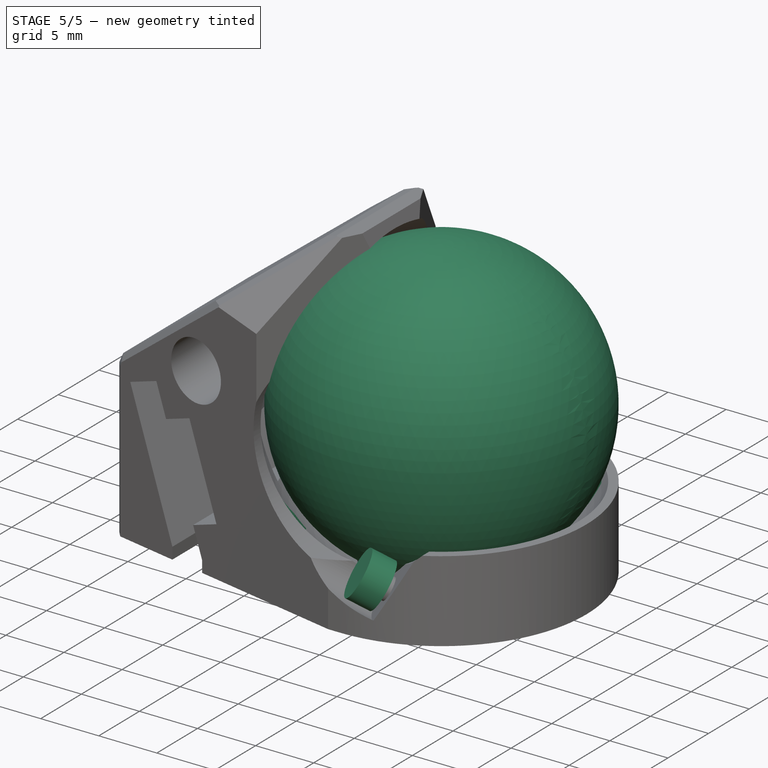
[diagram: stage 5 of 5 — iso view after this stage's code; geometry added in this stage tinted green]
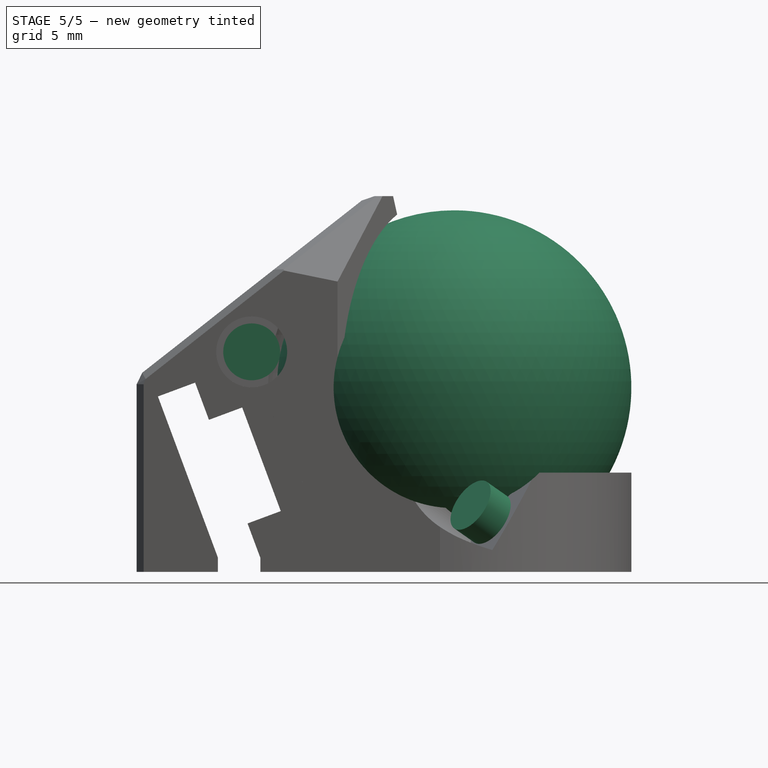
[diagram: stage 5 of 5 — front view after this stage's code; geometry added in this stage tinted green]
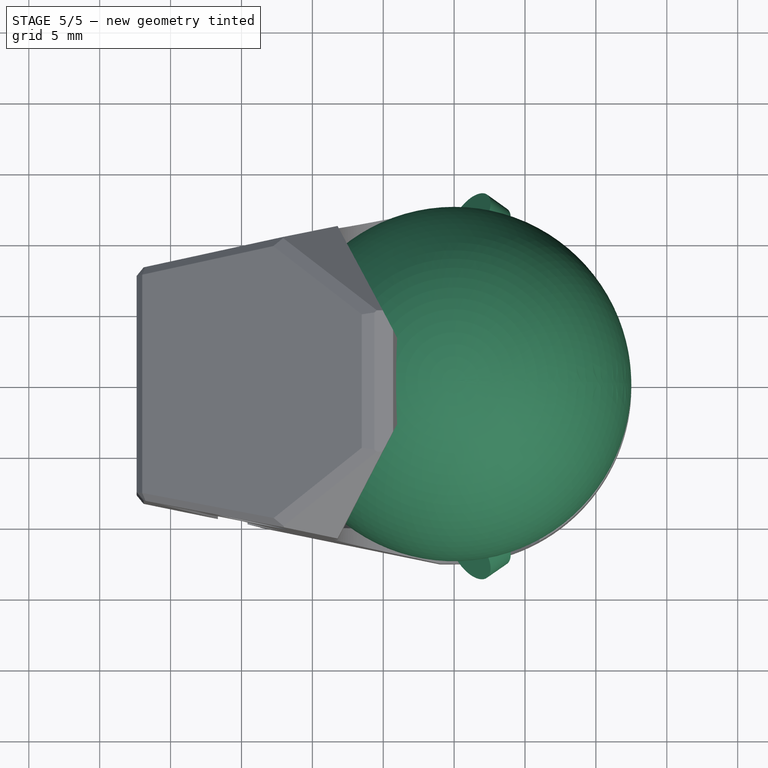
[diagram: stage 5 of 5 — top view after this stage's code; geometry added in this stage tinted green]
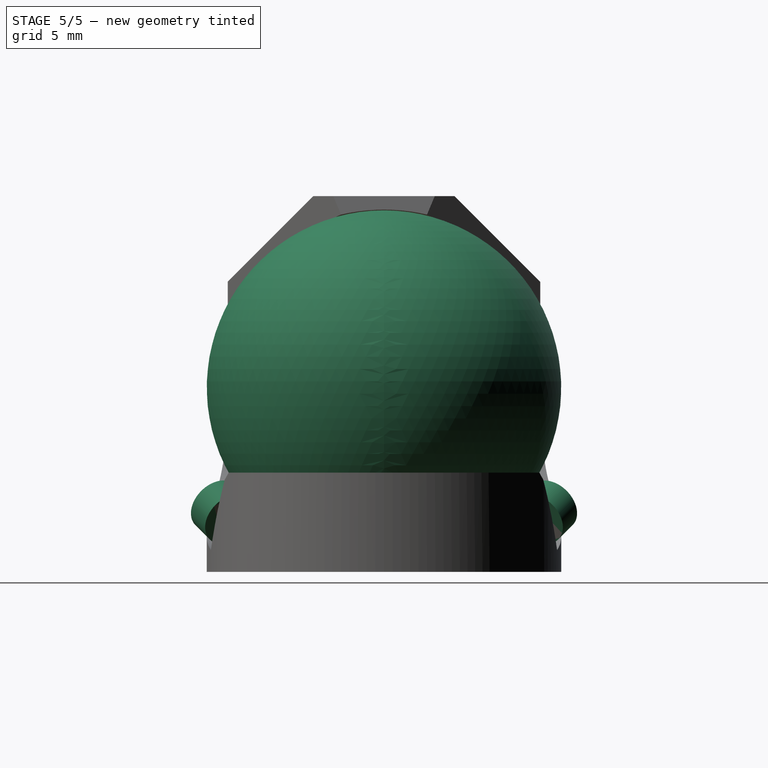
[diagram: stage 5 of 5 — right view after this stage's code; geometry added in this stage tinted green]
FEATURE [PartDesign::AdditiveSphere] Sphere001
  Angle1 = -90
  Angle2 = 90
  Angle3 = 360
  AttacherType = Attacher::AttachEngine3D
  AttachmentOffset = pos=(0,0,13) rot=(0,0,1;0rad)
  MapMode = 5
  Placement = pos=(0,0,13) rot=(0,0,1;0rad)
  Radius = 12.5
  Support = -> [XY_Plane001]
  expr: .AttachmentOffset.Base.z = Spreadsheet.ball_z
  expr: Radius = Spreadsheet.radius
FEATURE [Sketcher::SketchObject] Sketch013
  FullyConstrained = true
  MapMode = 5
  Support = -> [XY_Plane]
  sketch-geometry (36):
    g0: LineSegment StartX=-7.5 StartY=7.5 StartZ=0 EndX=7.5 EndY=7.5 EndZ=0
    g1: LineSegment StartX=7.5 StartY=7.5 StartZ=0 EndX=7.5 EndY=-7.5 EndZ=0
    g2: LineSegment StartX=7.5 StartY=-7.5 StartZ=0 EndX=-7.5 EndY=-7.5 EndZ=0
    g3: LineSegment StartX=-7.5 StartY=-7.5 StartZ=0 EndX=-7.5 EndY=7.5 EndZ=0
    g4: Circle CenterX=-7.5 CenterY=-7.5 CenterZ=0 NormalX=0 NormalY=0 NormalZ=1 AngleXU=0 Radius=1
    g5: Circle CenterX=-7.5 CenterY=7.5 CenterZ=0 NormalX=0 NormalY=0 NormalZ=1 AngleXU=0 Radius=1
    g6: Circle CenterX=7.5 CenterY=-7.5 CenterZ=0 NormalX=0 NormalY=0 NormalZ=1 AngleXU=0 Radius=1
    g7: Circle CenterX=7.5 CenterY=7.5 CenterZ=0 NormalX=0 NormalY=0 NormalZ=1 AngleXU=0 Radius=1
    g8: LineSegment StartX=-8 StartY=-6.63397 StartZ=0 EndX=-8.5 EndY=-7.5 EndZ=0
    g9: LineSegment StartX=-8.5 StartY=-7.5 StartZ=0 EndX=-8 EndY=-8.36603 EndZ=0
    g10: LineSegment StartX=-8 StartY=-8.36603 StartZ=0 EndX=-7 EndY=-8.36603 EndZ=0
    g11: LineSegment StartX=-7 StartY=-8.36603 StartZ=0 EndX=-6.5 EndY=-7.5 EndZ=0
    g12: LineSegment StartX=-6.5 StartY=-7.5 StartZ=0 EndX=-7 EndY=-6.63397 EndZ=0
    g13: LineSegment StartX=-7 StartY=-6.63397 StartZ=0 EndX=-8 EndY=-6.63397 EndZ=0
    g14: Circle CenterX=-7.5 CenterY=-7.5 CenterZ=0 NormalX=0 NormalY=0 NormalZ=1 AngleXU=0 Radius=1
    g15: LineSegment StartX=-8.5 StartY=7.5 StartZ=0 EndX=-8 EndY=6.63397 EndZ=0
    g16: LineSegment StartX=-8 StartY=6.63397 StartZ=0 EndX=-7 EndY=6.63397 EndZ=0
    g17: LineSegment StartX=-7 StartY=6.63397 StartZ=0 EndX=-6.5 EndY=7.5 EndZ=0
    g18: LineSegment StartX=-6.5 StartY=7.5 StartZ=0 EndX=-7 EndY=8.36603 EndZ=0
    g19: LineSegment StartX=-7 StartY=8.36603 StartZ=0 EndX=-8 EndY=8.36603 EndZ=0
    g20: LineSegment StartX=-8 StartY=8.36603 StartZ=0 EndX=-8.5 EndY=7.5 EndZ=0
    g21: Circle CenterX=-7.5 CenterY=7.5 CenterZ=0 NormalX=0 NormalY=0 NormalZ=1 AngleXU=0 Radius=1
    g22: LineSegment StartX=7 StartY=-8.36603 StartZ=0 EndX=8 EndY=-8.36603 EndZ=0
    g23: LineSegment StartX=8 StartY=-8.36603 StartZ=0 EndX=8.5 EndY=-7.5 EndZ=0
    g24: LineSegment StartX=8.5 StartY=-7.5 StartZ=0 EndX=8 EndY=-6.63397 EndZ=0
    g25: LineSegment StartX=8 StartY=-6.63397 StartZ=0 EndX=7 EndY=-6.63397 EndZ=0
    g26: LineSegment StartX=7 StartY=-6.63397 StartZ=0 EndX=6.5 EndY=-7.5 EndZ=0
    g27: LineSegment StartX=6.5 StartY=-7.5 StartZ=0 EndX=7 EndY=-8.36603 EndZ=0
    g28: Circle CenterX=7.5 CenterY=-7.5 CenterZ=0 NormalX=0 NormalY=0 NormalZ=1 AngleXU=0 Radius=1
    g29: LineSegment StartX=6.5 StartY=7.5 StartZ=0 EndX=7 EndY=6.63397 EndZ=0
    g30: LineSegment StartX=7 StartY=6.63397 StartZ=0 EndX=8 EndY=6.63397 EndZ=0
    g31: LineSegment StartX=8 StartY=6.63397 StartZ=0 EndX=8.5 EndY=7.5 EndZ=0
    g32: LineSegment StartX=8.5 StartY=7.5 StartZ=0 EndX=8 EndY=8.36603 EndZ=0
    g33: LineSegment StartX=8 StartY=8.36603 StartZ=0 EndX=7 EndY=8.36603 EndZ=0
    g34: LineSegment StartX=7 StartY=8.36603 StartZ=0 EndX=6.5 EndY=7.5 EndZ=0
    g35: Circle CenterX=7.5 CenterY=7.5 CenterZ=0 NormalX=0 NormalY=0 NormalZ=1 AngleXU=0 Radius=1
  constraints (84):
    c: Coincident(g0,g1)
    c: Coincident(g1,g2)
    c: Coincident(g2,g3)
    c: Coincident(g3,g0)
    c: Horizontal(g0)
    c: Horizontal(g2)
    c: Vertical(g1)
    c: Vertical(g3)
    c: Distance(g-1,g2) = 7.5
    c: Distance(g-1,g0) = 7.5
    c: Distance(g0,g-2) = 7.5
    c: Distance(g-1,g1) = 7.5
    c: Coincident(g4,g2)
    c: Coincident(g5,g0)
    c: Coincident(g6,g1)
    c: Coincident(g7,g0)
    c: Diameter(g4) = 2
    c: Diameter(g5) = 2
    c: Diameter(g7) = 2
    c: Diameter(g6) = 2
    c: Coincident(g8,g9)
    c: Coincident(g9,g10)
    c: Coincident(g10,g11)
    c: Coincident(g11,g12)
    c: Coincident(g12,g13)
    c: Coincident(g13,g8)
    c: Equal(g8, g9-g13) x5
    c: PointOnObject(g8,g14)
    c: PointOnObject(g9,g14)
    c: PointOnObject(g10,g14)
    c: PointOnObject(g11,g14)
    c: PointOnObject(g12,g14)
    c: PointOnObject(g13,g14)
    c: Coincident(g14,g2)
    c: PointOnObject(g13,g4)
    c: Coincident(g15,g16)
    c: Coincident(g16,g17)
    c: Coincident(g17,g18)
    c: Coincident(g18,g19)
    c: Coincident(g19,g20)
    c: Coincident(g20,g15)
    c: Equal(g15, g16-g20) x5
    c: PointOnObject(g15,g21)
    c: PointOnObject(g16,g21)
    c: PointOnObject(g17,g21)
    c: PointOnObject(g18,g21)
    c: PointOnObject(g19,g21)
    c: PointOnObject(g20,g21)
    c: Coincident(g21,g0)
    c: PointOnObject(g20,g5)
    c: Coincident(g22,g23)
    c: Coincident(g23,g24)
    c: Coincident(g24,g25)
    c: Coincident(g25,g26)
    c: Coincident(g26,g27)
    c: Coincident(g27,g22)
    c: Equal(g22, g23-g27) x5
    c: PointOnObject(g22,g28)
    c: PointOnObject(g23,g28)
    c: PointOnObject(g24,g28)
    c: PointOnObject(g25,g28)
    c: PointOnObject(g26,g28)
    c: PointOnObject(g27,g28)
    c: Coincident(g28,g1)
    c: PointOnObject(g27,g6)
    c: Coincident(g29,g30)
    c: Coincident(g30,g31)
    c: Coincident(g31,g32)
    c: Coincident(g32,g33)
    c: Coincident(g33,g34)
    c: Coincident(g34,g29)
    c: Equal(g29, g30-g34) x5
    c: PointOnObject(g29,g35)
    c: PointOnObject(g30,g35)
    c: PointOnObject(g31,g35)
    c: PointOnObject(g32,g35)
    c: PointOnObject(g33,g35)
    c: PointOnObject(g34,g35)
    c: Coincident(g35,g0)
    c: PointOnObject(g34,g7)
    c: Perpendicular(g3,g13)
    c: Perpendicular(g1,g25)
    c: Perpendicular(g30,g1)
    c: Perpendicular(g3,g16)
FEATURE [Sketcher::SketchObject] Sketch014
  FullyConstrained = true
  MapMode = 5
  Placement = pos=(0,0,0) rot=(1,0,0;1.5708rad)
  Support = -> [XZ_Plane001]
  expr: Constraints[1] = Spreadsheet.ball_z
  expr: Constraints[2] = Spreadsheet.radius + Spreadsheet.bearing_radius
  expr: Constraints[4] = Spreadsheet.bearing_radius * 2 + 0.01
  expr: Constraints[5] = Spreadsheet.bearing_a1
  sketch-geometry (2):
    g0: LineSegment StartX=0 StartY=13 StartZ=0 EndX=-14.2797 EndY=15.5179 EndZ=0
    g1: Circle CenterX=-14.2797 CenterY=15.5179 CenterZ=0 NormalX=0 NormalY=0 NormalZ=1 AngleXU=0 Radius=2.005
  constraints (6):
    c: PointOnObject(g0,g-2)
    c: Distance(g0,g-1) = 13
    c: Distance(g0) = 14.5
    c: Coincident(g1,g0)
    c: Diameter(g1) = 4.01
    c: Angle(g0,g-2) = 1.74533
FEATURE [PartDesign::Pad] Pad002
  BaseFeature = -> Sphere001
  Direction = (0,-1,2e-16)
  Length = 2
  Length2 = 10
  Midplane = true
  Placement = pos=(0,0,13) rot=(0,0,1;0rad)
  Profile = -> Sketch014
  ReferenceAxis = -> Sketch014 [N_Axis]
  Type = 0
  expr: Length = Spreadsheet.bearing_t
FEATURE [Sketcher::SketchObject] Sketch015
  FullyConstrained = false
  MapMode = 5
  Placement = pos=(0,0,0) rot=(1,0,0;1.5708rad)
  Support = -> [XZ_Plane001]
  expr: Constraints[1] = Spreadsheet.ball_z
  expr: Constraints[2] = Spreadsheet.bearing_a1
  expr: Constraints[3] = Spreadsheet.bearing_a2
  expr: Constraints[5] = (Spreadsheet.bearing_a1 + Spreadsheet.bearing_a2) / 2
  sketch-geometry (3):
    g0: LineSegment StartX=0 StartY=13 StartZ=0 EndX=-8.31178 EndY=14.4656 EndZ=0
    g1: LineSegment StartX=0 StartY=13 StartZ=0 EndX=3.2963 EndY=7.29064 EndZ=0
    g2: LineSegment StartX=5.49959 StartY=20.8542 StartZ=0 EndX=-6.19594 EndY=4.15128 EndZ=0
  constraints (6):
    c: PointOnObject(g0,g-2)
    c: Distance(g0,g-1) = 13
    c: Angle(g0,g-2) = 1.74533
    c: Angle(g-2,g1) = 0.523599
    c: PointOnObject(g0,g2)
    c: Angle(g0,g2) = 1.13446
FEATURE [PartDesign::Line] DatumLine001
  AttacherType = Attacher::AttachEngineLine
  Length = 20
  MapMode = 29
  Placement = pos=(-6.108,9e-16,4.27687) rot=(0.690162,-0.690162,-0.217607;2.71306rad)
  ResizeMode = 0
  Support = -> [Sketch015]
FEATURE [PartDesign::PolarPattern] PolarPattern001
  Angle = 360
  Axis = -> DatumLine001
  BaseFeature = -> Pad002
  Occurrences = 3
  Originals = -> [Pad002]
  Placement = pos=(0,0,13) rot=(0,0,1;0rad)
FEATURE [PartDesign::Pocket] Pocket010  label="固定穴"
  BaseFeature = -> Chamfer
  Direction = (0,0,-1)
  Length = 7
  Length2 = 5
  Placement = pos=(0,0,13) rot=(0,0,1;0rad)
  Profile = -> Sketch013
  ReferenceAxis = -> Sketch013 [N_Axis]
  Reversed = true
  Type = 0
FEATURE [PartDesign::Body] Body
  Group = -> [Sketch,Pad,Sketch009,Pocket006,Sphere,Sketch001,Pocket,Sketch002,Pocket001,Sketch006,DatumLine,DatumPoint,DatumPlane,Sketch003,Sketch010,Pocket007,Pocket002,Sketch004,Pad001,Sketch005,Pocket003,PolarPattern,Mirrored,Sketch007,Pocket004,Sketch008,Pocket005,Sketch011,Pocket008,Sketch012,Pocket009,Chamfer,Sketch013,Pocket010]
  Origin = -> Origin
  Tip = -> Pocket010
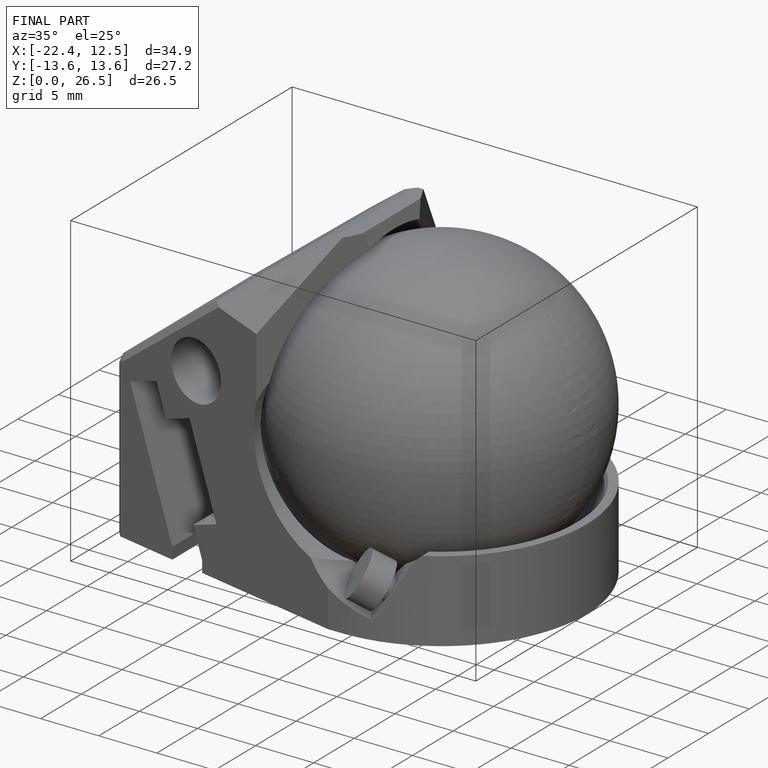
[diagram: finished part — iso view with bounding-box wireframe]
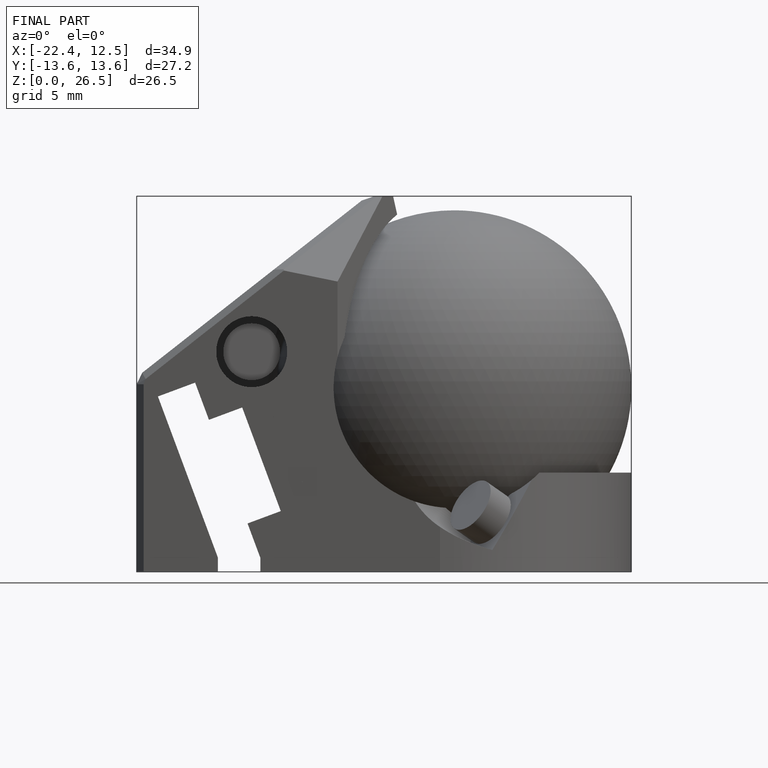
[diagram: finished part — front view with bounding-box wireframe]
